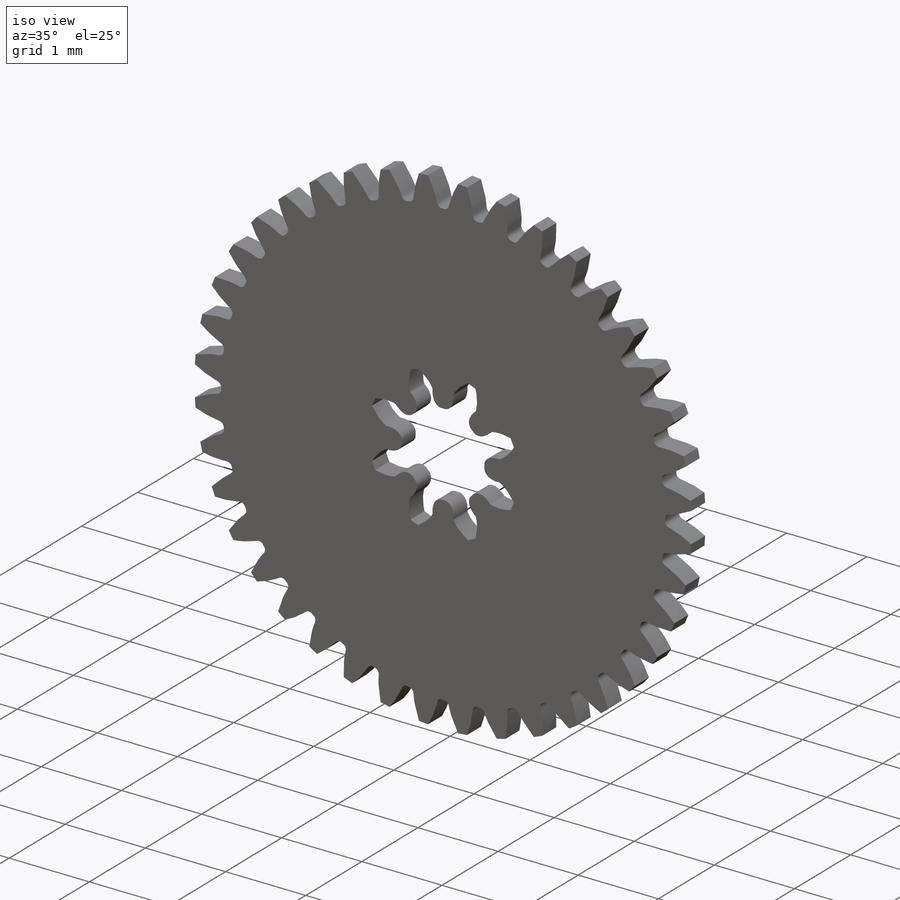
[diagram: iso view]
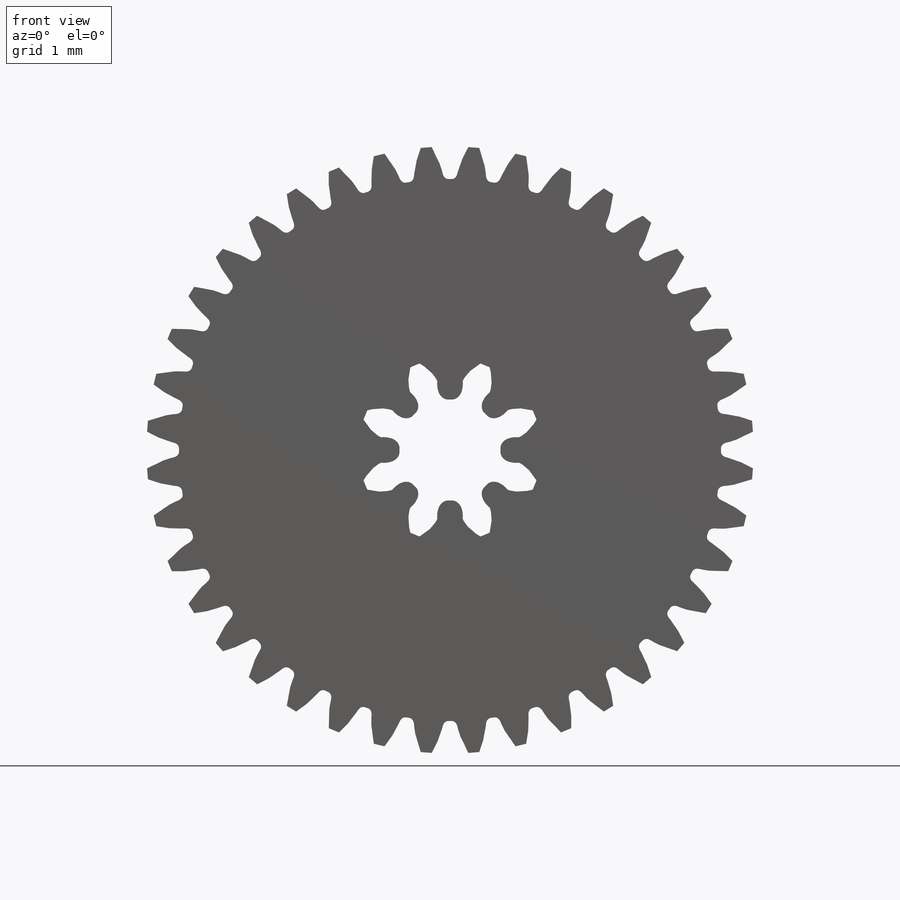
[diagram: front view]
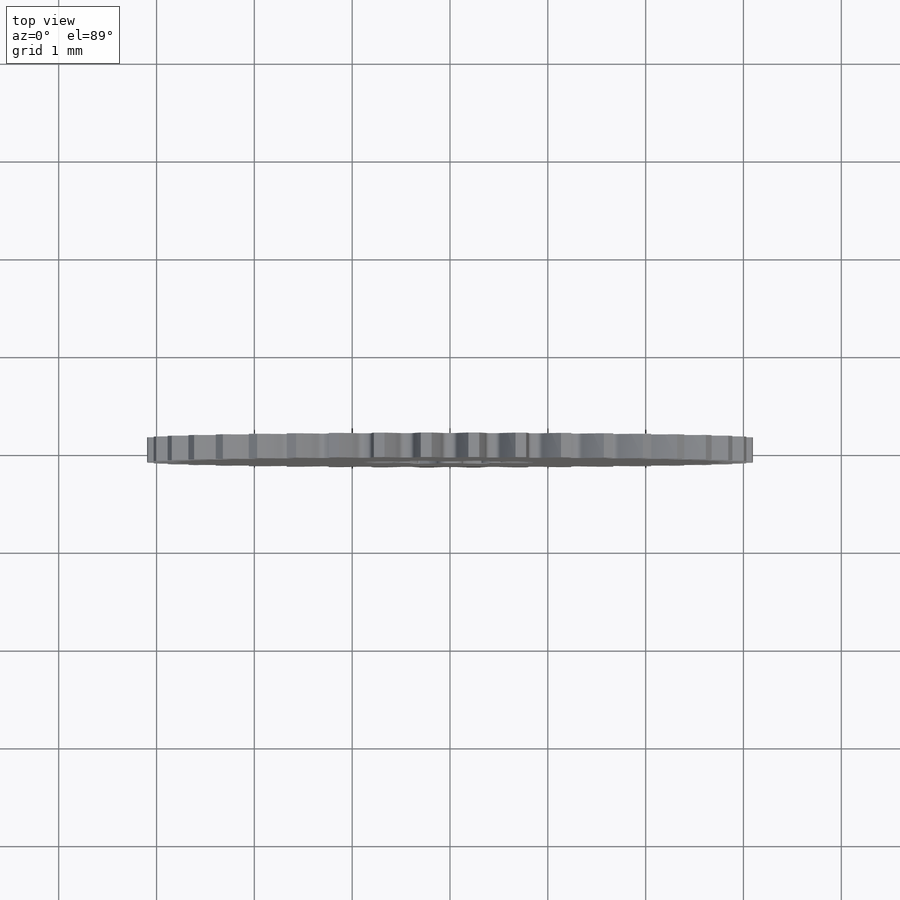
[diagram: top view]
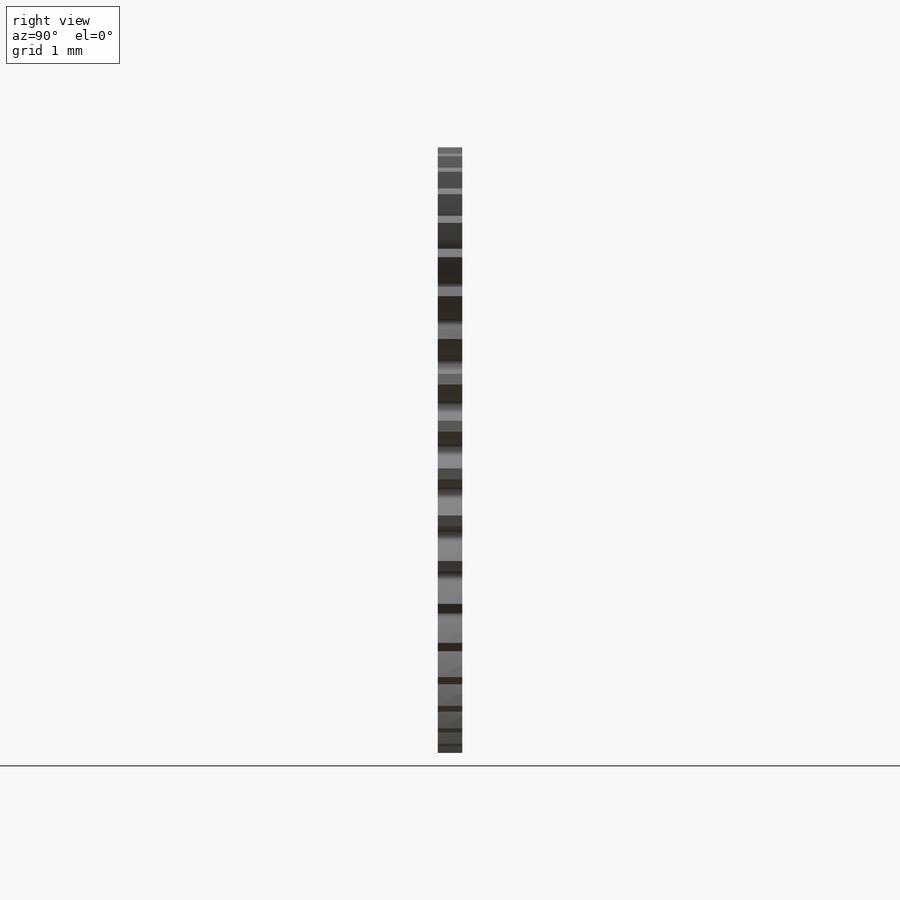
[diagram: right view]
SOLIDWORKS PART (.sldprt)
format: sldprt  version: not decoded by parser v0  size: 390,144 bytes
history: native  units: mm
features: sketch x4, plane x3, cut_extrude x2, material x1, revolve x1, pattern_circular x1 (+8 scaffold rows collapsed)
feature tree (20):
  scaffold x8  (default folders/planes/origin — collapsed)
  material  "Material <sin especificar>"
  plane  "Alzado"
  plane  "Planta"
  plane  "Vista lateral"
  sketch  "SketchRevolveSpur03"
  revolve  "Spur03"  Angle=360deg
  sketch  "SketchToothSpur03"
  cut_extrude  "ToothExtrudeCutSpur03"  Depth=0.125mm
  pattern_circular  "PatternSpur03"  Count=40 Angle=9deg
  sketch  "AuxiliarySketchSpur03"  dims[PitchDiameter=~5.909091mm BaseDiameter=~5.552729mm FormDiameter=~5.662928mm MajorDiameter=~6.204545mm MinorDiameter=~5.539773mm]
  sketch  "Croquis1"  dims[D1=0.5mm]
  cut_extrude  "Cortar-Extruir1"  [1 undecoded]
decode coverage: 5 of 8 modeling features carry decoded parameters
note: ~ marks probable driven/reference dimensions
note: 1 parameter value undecoded
note: suppression state not decoded; provenance and decode notes live in map.json
